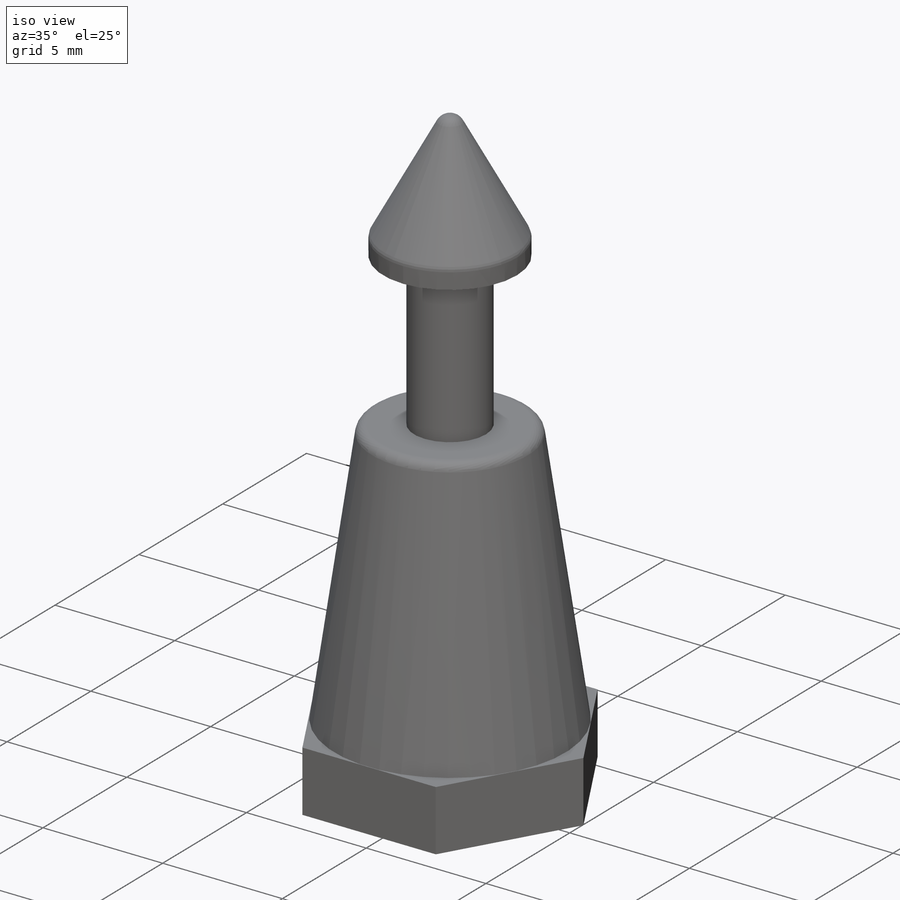
[diagram: iso view]
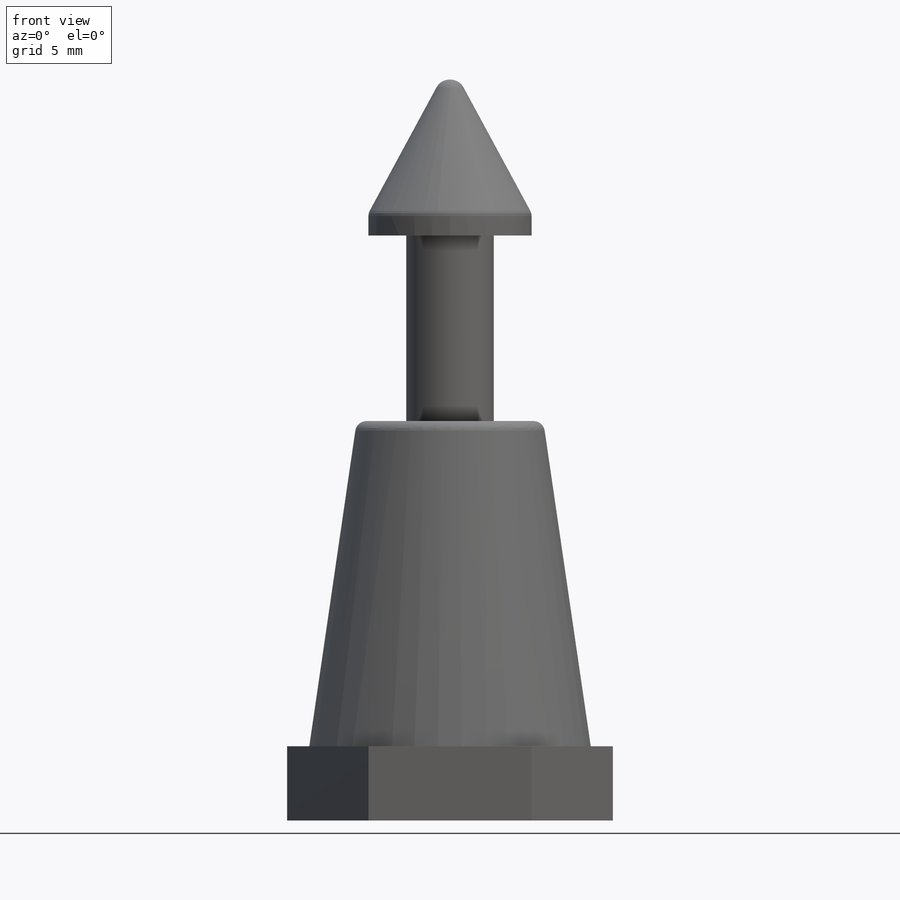
[diagram: front view]
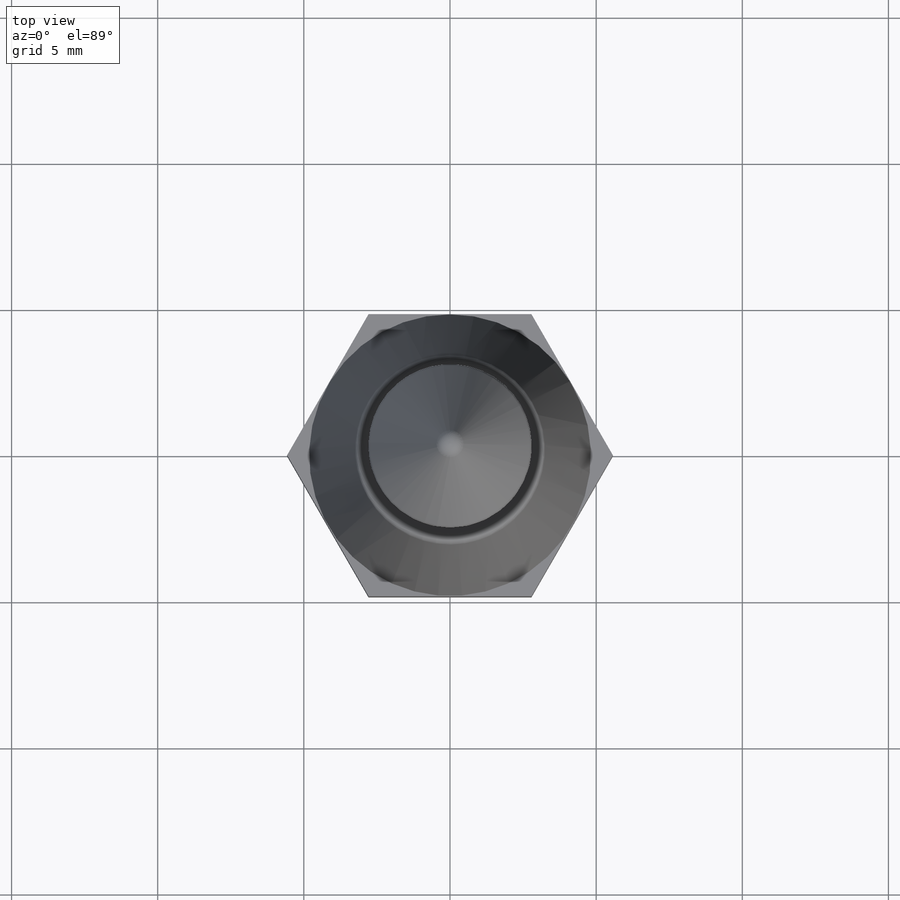
[diagram: top view]
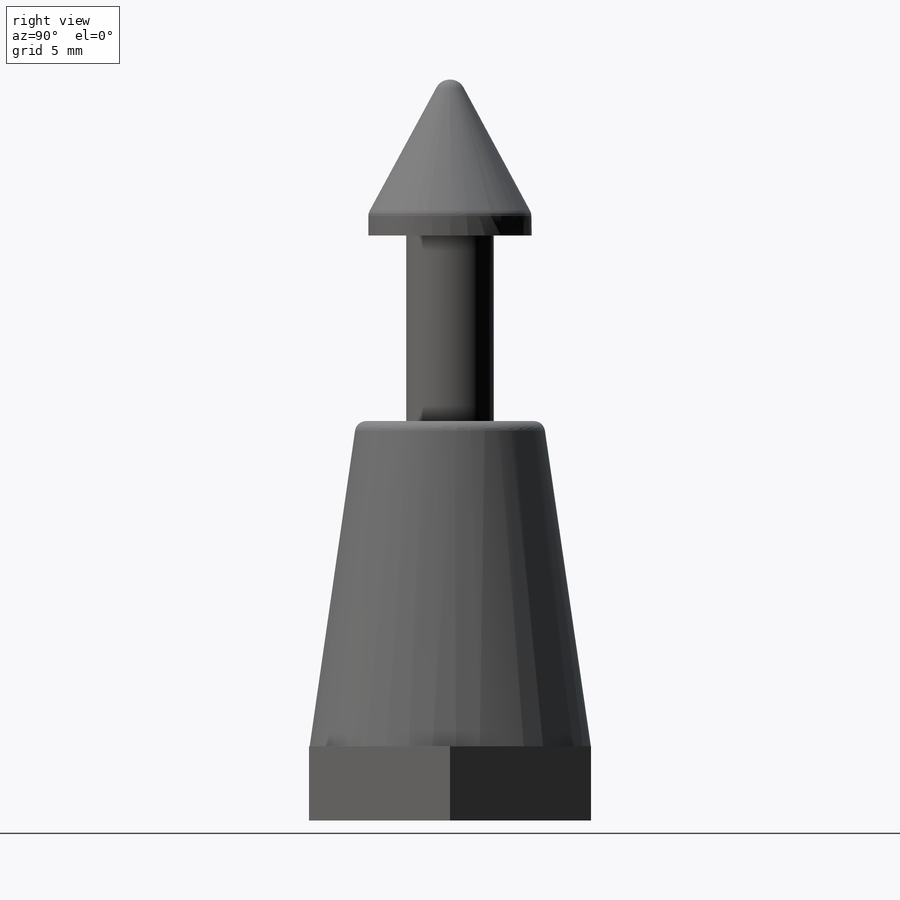
[diagram: right view]
SOLIDWORKS PART (.sldprt)
format: sldprt  version: not decoded by parser v0  size: 227,840 bytes
history: native  units: mm
features: sketch x4, revolve x2, fillet x2, material x1, extrude x1, cut_extrude x1, chamfer x1 (+12 scaffold rows collapsed)
feature tree (24):
  scaffold x12  (default folders/planes/origin — collapsed)
  material  "Material <not specified>"
  sketch  "Sketch1"  dims[c1.D1=12.1412mm c1.D2=13.6652mm c1.D3=6.35mm c1.D4=0.762mm c1.D5=25.3492mm c1.D6=5.588mm c1.D7=0.635mm c1.D8=2.9972mm c1.D9=5.588mm c1.D10=3.3274mm c2.D1=9.652mm c2.D2=2.4892mm c2.D9=13.6652mm c2.D10=6.4008mm]
  revolve  "Revolve1"  Angle=360deg
  sketch  "Sketch2"  dims[D1=9.652mm]
  extrude  "Boss-Extrude1"  Depth=2.54mm
  sketch  "Sketch3"  dims[D1=1.524mm]
  revolve  "Revolve2-Mini_Post_Rubber_supress"  Angle=360deg
  fillet  "Fillet1"  Radius=0.381mm
  fillet  "Fillet2"  Radius=0.508mm
  sketch  "Sketch4"  dims[D1=3.048mm]
  cut_extrude  "Cut-Extrude1"  Depth=11.176mm
  chamfer  "Chamfer1"  Distance=0.762mm Angle=45deg
decode coverage: 11 of 11 modeling features carry decoded parameters
note: suppression state not decoded; provenance and decode notes live in map.json
